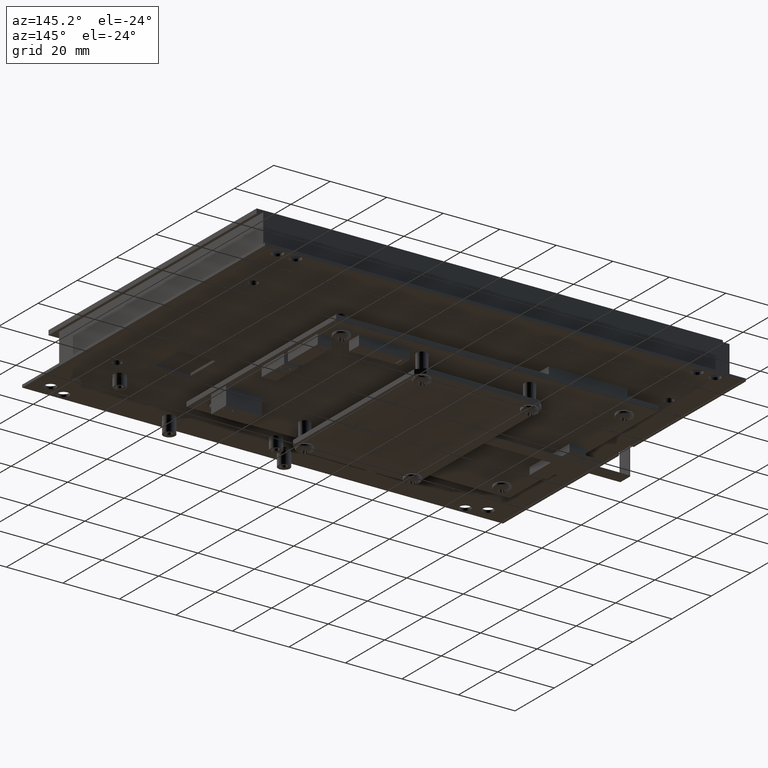
[diagram: clean part render]
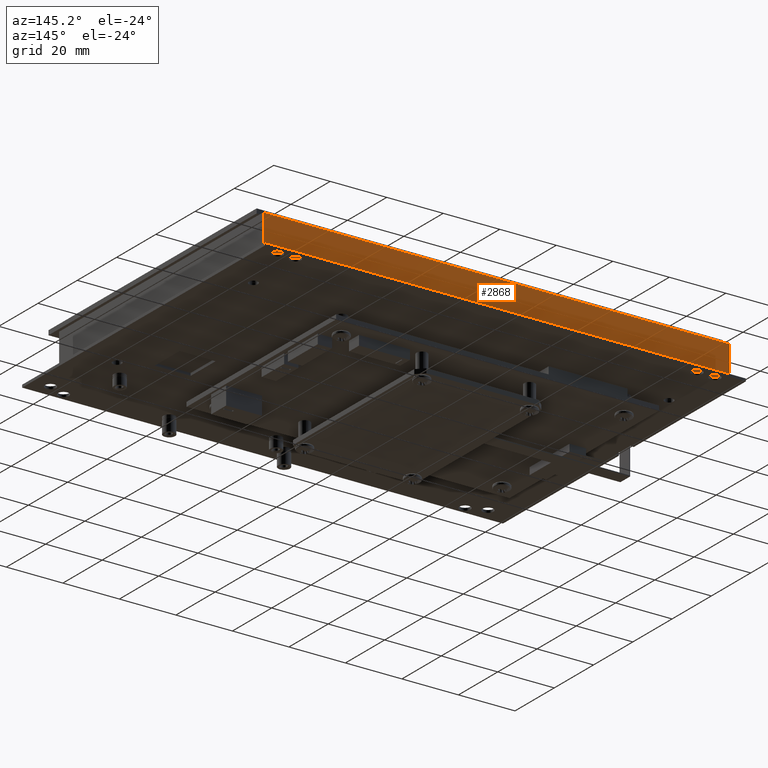
[diagram: same view with one face highlighted and labeled with its STEP entity id]
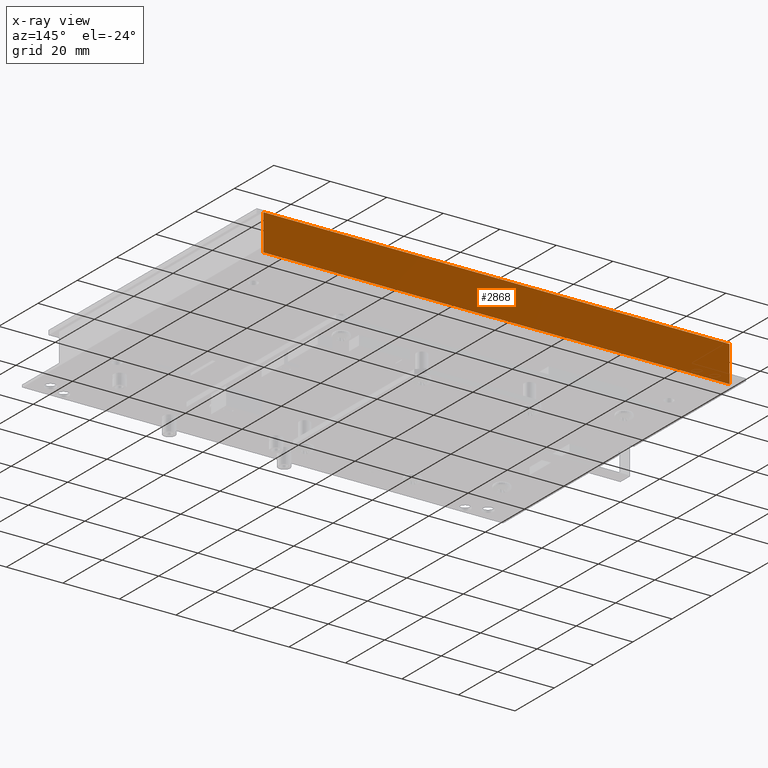
[diagram: x-ray of the same camera — body ghosted, the highlighted face saturated]
A machine part, auxiliary view. The second image highlights one B-rep face of the part: STEP entity #2868.
The next image is the same camera in x-ray: the body ghosted, the highlighted face saturated — about 0% of this face is hidden behind the body in this view.
In plain terms, the highlighted planar face has unit normal (0, -1, 0).
Its self-contained STEP definition (entity closure, byte-faithful):
#2868 = ADVANCED_FACE ( 'NONE', ( #13919 ), #13920, .F. ) ;
#3640 = VECTOR ( 'NONE', #8672, 39.37007874015748100 ) ;
#3642 = VECTOR ( 'NONE', #8681, 39.37007874015748100 ) ;
#3644 = VECTOR ( 'NONE', #8687, 39.37007874015748100 ) ;
#4474 = VECTOR ( 'NONE', #8646, 39.37007874015748100 ) ;
#5708 = VERTEX_POINT ( 'NONE', #14768 ) ;
#5750 = VERTEX_POINT ( 'NONE', #14810 ) ;
#5821 = VERTEX_POINT ( 'NONE', #14881 ) ;
#5828 = VERTEX_POINT ( 'NONE', #14888 ) ;
#6272 = AXIS2_PLACEMENT_3D ( 'NONE', #13911, #13922, #13923 ) ;
#8638 = LINE ( 'NONE', #8644, #4474 ) ;
#8644 = CARTESIAN_POINT ( 'NONE',  ( -3.248031496062992600, 2.047244094488188400, 0.0000000000000000000 ) ) ;
#8646 = DIRECTION ( 'NONE',  ( -1.000000000000000000, -0.0000000000000000000, -0.0000000000000000000 ) ) ;
#8648 = LINE ( 'NONE', #8671, #3640 ) ;
#8671 = CARTESIAN_POINT ( 'NONE',  ( -3.248031496062992600, 2.047244094488188400, 0.5039370078740157400 ) ) ;
#8672 = DIRECTION ( 'NONE',  ( -0.0000000000000000000, -0.0000000000000000000, -1.000000000000000000 ) ) ;
#8679 = LINE ( 'NONE', #8680, #3642 ) ;
#8680 = CARTESIAN_POINT ( 'NONE',  ( 3.248031496062992600, 2.047244094488188400, 0.5039370078740157400 ) ) ;
#8681 = DIRECTION ( 'NONE',  ( -0.0000000000000000000, -0.0000000000000000000, -1.000000000000000000 ) ) ;
#8685 = LINE ( 'NONE', #8686, #3644 ) ;
#8686 = CARTESIAN_POINT ( 'NONE',  ( -3.248031496062992600, 2.047244094488188400, 0.5039370078740157400 ) ) ;
#8687 = DIRECTION ( 'NONE',  ( -1.000000000000000000, -0.0000000000000000000, -0.0000000000000000000 ) ) ;
#11892 = EDGE_CURVE ( 'NONE', #5708, #5750, #8638, .T. ) ;
#11908 = EDGE_CURVE ( 'NONE', #5828, #5750, #8648, .T. ) ;
#11914 = EDGE_CURVE ( 'NONE', #5821, #5708, #8679, .T. ) ;
#11918 = EDGE_CURVE ( 'NONE', #5821, #5828, #8685, .T. ) ;
#13911 = CARTESIAN_POINT ( 'NONE',  ( -3.248031496062992600, 2.047244094488188400, 0.5039370078740157400 ) ) ;
#13919 = FACE_OUTER_BOUND ( 'NONE', #16646, .T. ) ;
#13920 = PLANE ( 'NONE',  #6272 ) ;
#13922 = DIRECTION ( 'NONE',  ( 0.0000000000000000000, -1.000000000000000000, 0.0000000000000000000 ) ) ;
#13923 = DIRECTION ( 'NONE',  ( 0.0000000000000000000, -0.0000000000000000000, -1.000000000000000000 ) ) ;
#14768 = CARTESIAN_POINT ( 'NONE',  ( 3.248031496062992600, 2.047244094488188400, 0.0000000000000000000 ) ) ;
#14810 = CARTESIAN_POINT ( 'NONE',  ( -3.248031496062992600, 2.047244094488188400, 0.0000000000000000000 ) ) ;
#14881 = CARTESIAN_POINT ( 'NONE',  ( 3.248031496062992600, 2.047244094488188400, 0.5039370078740157400 ) ) ;
#14888 = CARTESIAN_POINT ( 'NONE',  ( -3.248031496062992600, 2.047244094488188400, 0.5039370078740157400 ) ) ;
#15944 = ORIENTED_EDGE ( 'NONE', *, *, #11892, .T. ) ;
#16013 = ORIENTED_EDGE ( 'NONE', *, *, #11914, .T. ) ;
#16014 = ORIENTED_EDGE ( 'NONE', *, *, #11908, .F. ) ;
#16015 = ORIENTED_EDGE ( 'NONE', *, *, #11918, .F. ) ;
#16646 = EDGE_LOOP ( 'NONE', ( #15944, #16014, #16015, #16013 ) ) ;